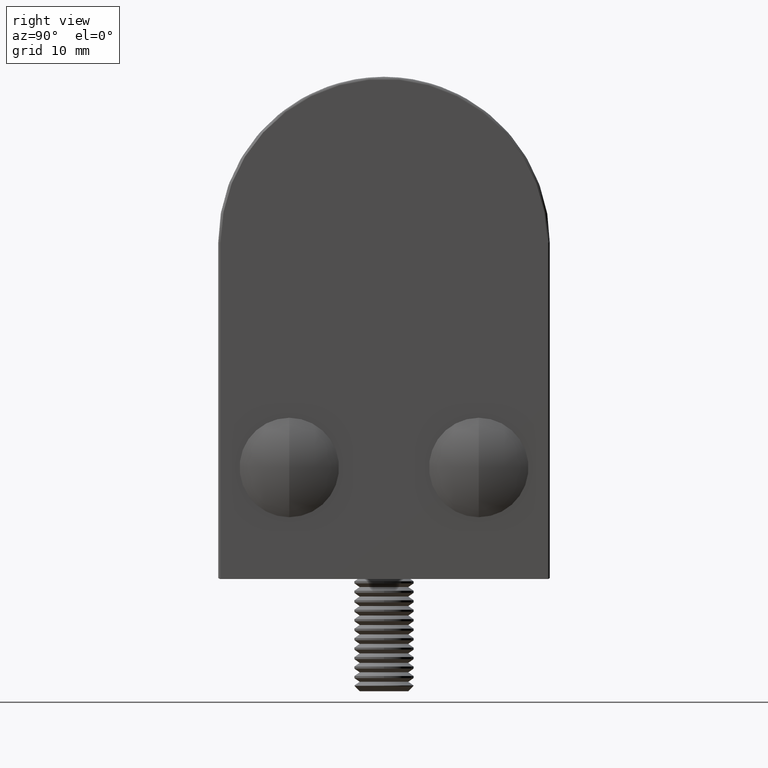
[diagram: clean part render]
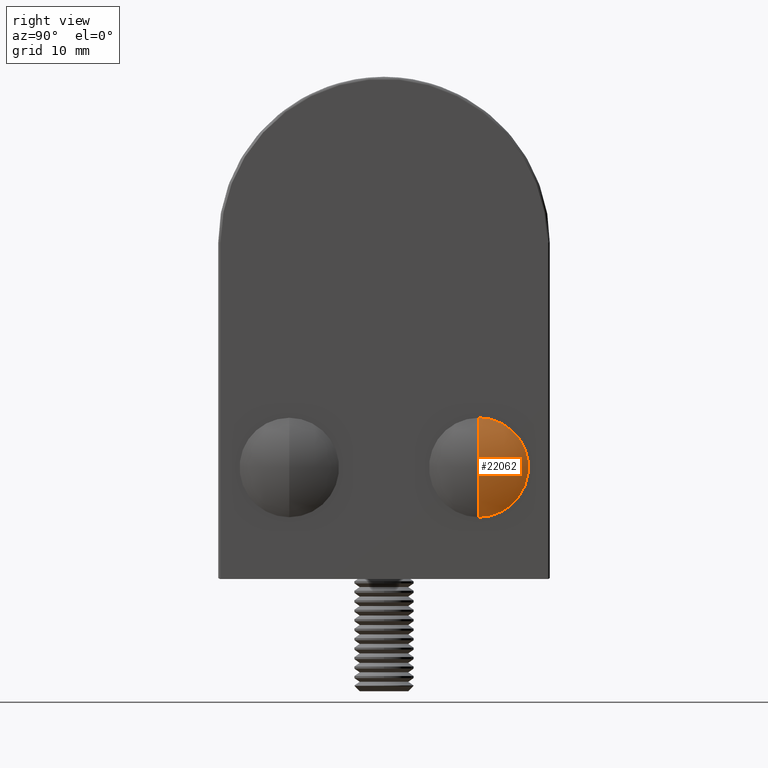
[diagram: same view with one face highlighted and labeled with its STEP entity id]
A machine part, right view. The second image highlights one B-rep face of the part: STEP entity #22062.
In plain terms, the highlighted spherical surface has radius 9.32 mm.
Its self-contained STEP definition (entity closure, byte-faithful):
#1645 = AXIS2_PLACEMENT_3D ( 'NONE', #47847, #37505, #42750 ) ;
#1694 = EDGE_CURVE ( 'NONE', #59492, #25239, #48743, .T. ) ;
#5636 = SPHERICAL_SURFACE ( 'NONE', #23495, 9.319999999999995000 ) ;
#7677 = CARTESIAN_POINT ( 'NONE',  ( 0.0000000000000000000, -8.319999999999993200, 0.0000000000000000000 ) ) ;
#8057 = EDGE_CURVE ( 'NONE', #12996, #25239, #45342, .T. ) ;
#9325 = CARTESIAN_POINT ( 'NONE',  ( -4.200000000000000200, 8.673617379884035500E-016, 5.143516556418884900E-016 ) ) ;
#10135 = FACE_OUTER_BOUND ( 'NONE', #11000, .T. ) ;
#11000 = EDGE_LOOP ( 'NONE', ( #49311, #22793, #26441 ) ) ;
#12480 = DIRECTION ( 'NONE',  ( 0.0000000000000000000, 0.0000000000000000000, -1.000000000000000000 ) ) ;
#12933 = CARTESIAN_POINT ( 'NONE',  ( 4.200000000000000200, 8.673617379884035500E-016, 0.0000000000000000000 ) ) ;
#12996 = VERTEX_POINT ( 'NONE', #9325 ) ;
#13061 = DIRECTION ( 'NONE',  ( 0.0000000000000000000, 0.0000000000000000000, 1.000000000000000000 ) ) ;
#16811 = CARTESIAN_POINT ( 'NONE',  ( 5.706854084026663700E-016, 1.000000000000000900, 0.0000000000000000000 ) ) ;
#22062 = ADVANCED_FACE ( 'NONE', ( #10135 ), #5636, .T. ) ;
#22793 = ORIENTED_EDGE ( 'NONE', *, *, #1694, .T. ) ;
#23495 = AXIS2_PLACEMENT_3D ( 'NONE', #47823, #13061, #55831 ) ;
#25239 = VERTEX_POINT ( 'NONE', #12933 ) ;
#26441 = ORIENTED_EDGE ( 'NONE', *, *, #8057, .F. ) ;
#31164 = CARTESIAN_POINT ( 'NONE',  ( 0.0000000000000000000, -8.319999999999993200, 0.0000000000000000000 ) ) ;
#37505 = DIRECTION ( 'NONE',  ( -0.0000000000000000000, -1.000000000000000000, -0.0000000000000000000 ) ) ;
#42750 = DIRECTION ( 'NONE',  ( 0.0000000000000000000, 0.0000000000000000000, -1.000000000000000000 ) ) ;
#45342 = CIRCLE ( 'NONE', #1645, 4.200000000000001100 ) ;
#45664 = AXIS2_PLACEMENT_3D ( 'NONE', #7677, #12480, #46151 ) ;
#45672 = AXIS2_PLACEMENT_3D ( 'NONE', #31164, #54953, #50734 ) ;
#46151 = DIRECTION ( 'NONE',  ( -1.000000000000000000, 0.0000000000000000000, 0.0000000000000000000 ) ) ;
#47823 = CARTESIAN_POINT ( 'NONE',  ( 0.0000000000000000000, -8.319999999999993200, 0.0000000000000000000 ) ) ;
#47847 = CARTESIAN_POINT ( 'NONE',  ( 0.0000000000000000000, 0.0000000000000000000, 0.0000000000000000000 ) ) ;
#48743 = CIRCLE ( 'NONE', #45664, 9.319999999999995000 ) ;
#49311 = ORIENTED_EDGE ( 'NONE', *, *, #55923, .F. ) ;
#50734 = DIRECTION ( 'NONE',  ( 1.000000000000000000, 0.0000000000000000000, -1.224646799147353500E-016 ) ) ;
#51853 = CIRCLE ( 'NONE', #45672, 9.319999999999995000 ) ;
#54953 = DIRECTION ( 'NONE',  ( 1.224646799147353200E-016, -0.0000000000000000000, 1.000000000000000000 ) ) ;
#55831 = DIRECTION ( 'NONE',  ( 1.000000000000000000, 0.0000000000000000000, 0.0000000000000000000 ) ) ;
#55923 = EDGE_CURVE ( 'NONE', #59492, #12996, #51853, .T. ) ;
#59492 = VERTEX_POINT ( 'NONE', #16811 ) ;